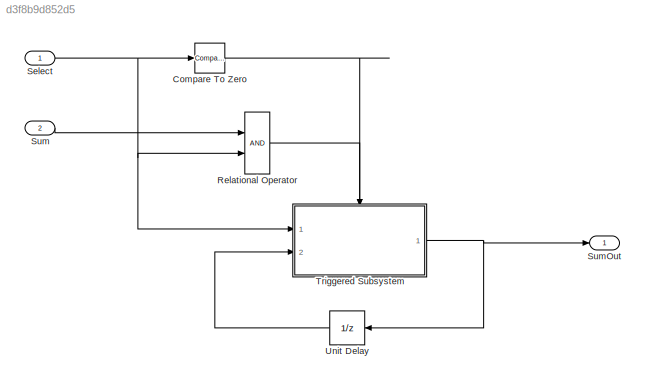
MODEL slx_d3f8b9d852d5
KIND model
CONFIG AbsTol = auto
CONFIG FixedStep = 0.1
CONFIG MaxStep = auto
CONFIG MinStep = auto
CONFIG RelTol = 1e-3
CONFIG SampleTimeConstraint = Unconstrained
CONFIG Solver = FixedStepDiscrete
CONFIG SolverMode = Auto
CONFIG SolverName = FixedStepDiscrete
CONFIG StartTime = 0.0
CONFIG StopTime = 1000
BLOCK [Reference] Compare To Zero  REF=simulink/Logic and Bit
Operations/Compare
To Zero
  OutDataTypeStr = boolean
  Ports = [1, 1]
  SourceBlock = simulink/Logic and Bit\nOperations/Compare\nTo Zero
  SourceType = Compare To Zero
  ZeroCross = on
  relop = >
BLOCK [RelationalOperator] Relational Operator
  InputSameDT = off
  OutDataTypeStr = boolean
  Ports = [2, 1]
BLOCK [Inport] Select
  IconDisplay = Port number
  OutDataTypeStr = uint16
  PortDimensions = 1
  SamplingMode = Sample based
  SignalType = real
BLOCK [Inport] Sum
  IconDisplay = Port number
  OutDataTypeStr = uint16
  Port = 2
  PortDimensions = 1
  SamplingMode = Sample based
  SignalType = real
BLOCK [Outport] SumOut
  IconDisplay = Port number
  OutDataTypeStr = uint16
  PortDimensions = 1
  SamplingMode = Sample based
  SignalType = real
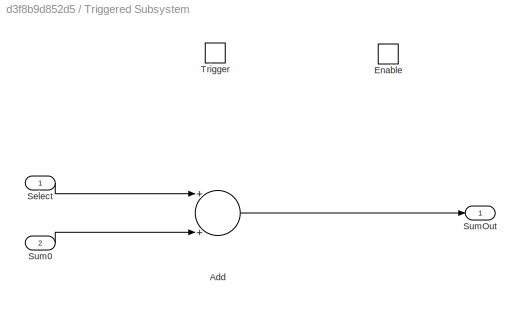
BLOCK [SubSystem] Triggered Subsystem
  Ports = [2, 1, 1, 1]
  RequestExecContextInheritance = off
  TreatAsAtomicUnit = on
BLOCK [Sum] Triggered Subsystem/Add
  InputSameDT = off
  OutDataTypeStr = uint16
  Ports = [2, 1]
  SaturateOnIntegerOverflow = off
BLOCK [EnablePort] Triggered Subsystem/Enable
  Ports = []
BLOCK [Inport] Triggered Subsystem/Select
  IconDisplay = Port number
BLOCK [Inport] Triggered Subsystem/Sum0
  IconDisplay = Port number
  Port = 2
BLOCK [Outport] Triggered Subsystem/SumOut
  IconDisplay = Port number
  InitialOutput = 0
BLOCK [TriggerPort] Triggered Subsystem/Trigger
  Ports = []
  StatesWhenEnabling = held
BLOCK [UnitDelay] Unit Delay
  InputProcessing = Elements as channels (sample based)
  SampleTime = -1
LINE Compare To Zero:1 -> Triggered Subsystem:trigger
LINE Relational Operator:1 -> Triggered Subsystem:enable
NET Select:1 -> Compare To Zero:1, Relational Operator:2, Triggered Subsystem:1
LINE Sum:1 -> Relational Operator:1
LINE Triggered Subsystem/Add:1 -> Triggered Subsystem/SumOut:1
LINE Triggered Subsystem/Select:1 -> Triggered Subsystem/Add:1
LINE Triggered Subsystem/Sum0:1 -> Triggered Subsystem/Add:2
NET Triggered Subsystem:1 -> SumOut:1, Unit Delay:1
LINE Unit Delay:1 -> Triggered Subsystem:2
note: NET lines group one-source signal fan-out (src -> all destinations, sorted); 1:1 wires keep LINE
